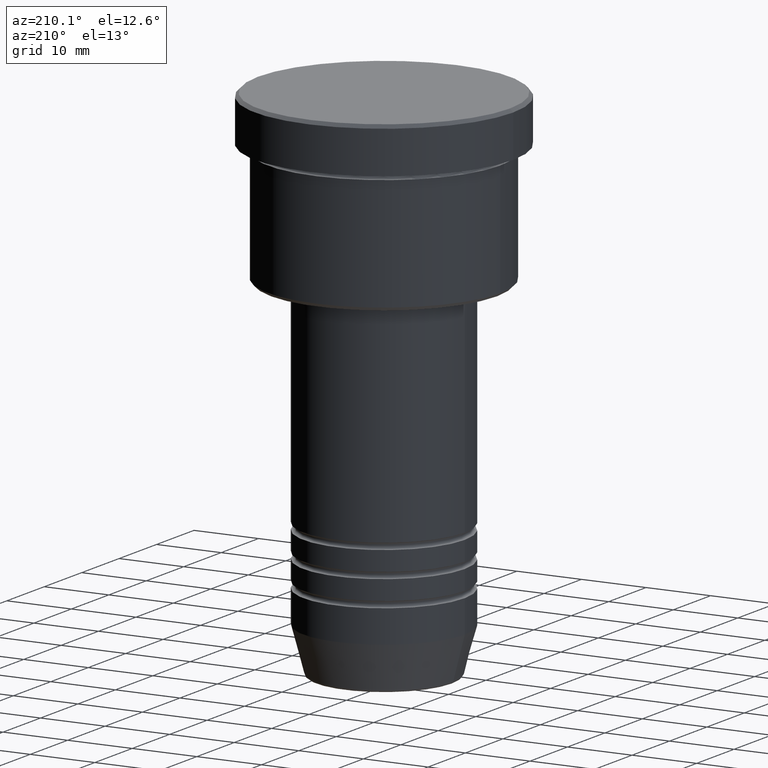
[diagram: clean part render]
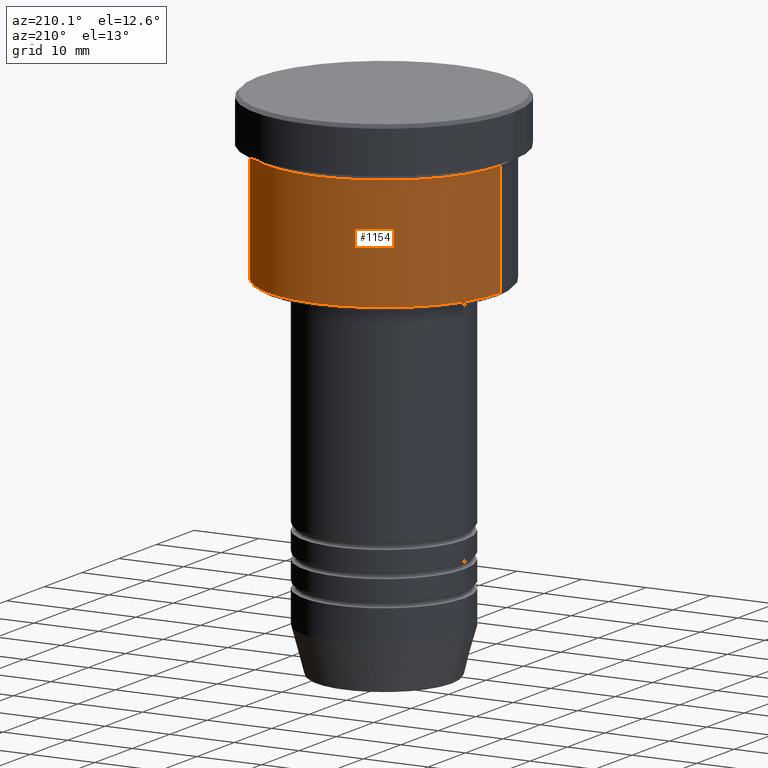
[diagram: same view with one face highlighted and labeled with its STEP entity id]
A machine part, auxiliary view. The second image highlights one B-rep face of the part: STEP entity #1154.
In plain terms, the highlighted cylindrical surface (partial cylindrical patch) has radius 18 mm, axis along (-0, -0, 1).
Its self-contained STEP definition (entity closure, byte-faithful):
#62 = CARTESIAN_POINT ( 'NONE',  ( 18.00000000000000000, 0.000000000000000000, 0.000000000000000000 ) ) ;
#84 = VERTEX_POINT ( 'NONE', #206 ) ;
#100 = ORIENTED_EDGE ( 'NONE', *, *, #975, .T. ) ;
#104 = DIRECTION ( 'NONE',  ( -0.000000000000000000, -0.000000000000000000, 1.000000000000000000 ) ) ;
#142 = CARTESIAN_POINT ( 'NONE',  ( -18.00000000000000000, 2.204364238465235428E-15, -7.999999999999996447 ) ) ;
#171 = AXIS2_PLACEMENT_3D ( 'NONE', #249, #522, #1136 ) ;
#206 = CARTESIAN_POINT ( 'NONE',  ( 18.00000000000000000, 0.000000000000000000, -25.50000000000002132 ) ) ;
#220 = EDGE_LOOP ( 'NONE', ( #100, #1014, #757, #1019 ) ) ;
#231 = EDGE_CURVE ( 'NONE', #1008, #570, #253, .T. ) ;
#241 = CARTESIAN_POINT ( 'NONE',  ( -18.00000000000000000, 2.204364238465235428E-15, -25.50000000000002132 ) ) ;
#245 = DIRECTION ( 'NONE',  ( -0.000000000000000000, -0.000000000000000000, 1.000000000000000000 ) ) ;
#249 = CARTESIAN_POINT ( 'NONE',  ( 0.000000000000000000, 0.000000000000000000, 0.000000000000000000 ) ) ;
#253 = CIRCLE ( 'NONE', #788, 18.00000000000000000 ) ;
#296 = VECTOR ( 'NONE', #245, 1000.000000000000000 ) ;
#320 = DIRECTION ( 'NONE',  ( -1.000000000000000000, 0.000000000000000000, 0.000000000000000000 ) ) ;
#360 = CARTESIAN_POINT ( 'NONE',  ( -18.00000000000000000, 2.204364238465235428E-15, 0.000000000000000000 ) ) ;
#433 = LINE ( 'NONE', #62, #296 ) ;
#437 = EDGE_CURVE ( 'NONE', #588, #570, #808, .T. ) ;
#506 = DIRECTION ( 'NONE',  ( 1.000000000000000000, 0.000000000000000000, 0.000000000000000000 ) ) ;
#522 = DIRECTION ( 'NONE',  ( -0.000000000000000000, -0.000000000000000000, 1.000000000000000000 ) ) ;
#525 = DIRECTION ( 'NONE',  ( -0.000000000000000000, -0.000000000000000000, 1.000000000000000000 ) ) ;
#556 = AXIS2_PLACEMENT_3D ( 'NONE', #866, #104, #320 ) ;
#570 = VERTEX_POINT ( 'NONE', #142 ) ;
#588 = VERTEX_POINT ( 'NONE', #241 ) ;
#610 = CARTESIAN_POINT ( 'NONE',  ( 0.000000000000000000, 0.000000000000000000, -7.999999999999996447 ) ) ;
#757 = ORIENTED_EDGE ( 'NONE', *, *, #231, .F. ) ;
#788 = AXIS2_PLACEMENT_3D ( 'NONE', #610, #969, #506 ) ;
#801 = CYLINDRICAL_SURFACE ( 'NONE', #171, 18.00000000000000000 ) ;
#808 = LINE ( 'NONE', #360, #915 ) ;
#866 = CARTESIAN_POINT ( 'NONE',  ( 0.000000000000000000, 0.000000000000000000, -25.50000000000002132 ) ) ;
#915 = VECTOR ( 'NONE', #525, 1000.000000000000000 ) ;
#927 = CARTESIAN_POINT ( 'NONE',  ( 18.00000000000000000, 0.000000000000000000, -7.999999999999996447 ) ) ;
#955 = CIRCLE ( 'NONE', #556, 18.00000000000000000 ) ;
#969 = DIRECTION ( 'NONE',  ( -0.000000000000000000, -0.000000000000000000, 1.000000000000000000 ) ) ;
#975 = EDGE_CURVE ( 'NONE', #84, #588, #955, .T. ) ;
#1008 = VERTEX_POINT ( 'NONE', #927 ) ;
#1014 = ORIENTED_EDGE ( 'NONE', *, *, #437, .T. ) ;
#1019 = ORIENTED_EDGE ( 'NONE', *, *, #1123, .F. ) ;
#1061 = FACE_OUTER_BOUND ( 'NONE', #220, .T. ) ;
#1123 = EDGE_CURVE ( 'NONE', #84, #1008, #433, .T. ) ;
#1136 = DIRECTION ( 'NONE',  ( 1.000000000000000000, 0.000000000000000000, 0.000000000000000000 ) ) ;
#1154 = ADVANCED_FACE ( 'NONE', ( #1061 ), #801, .T. ) ;